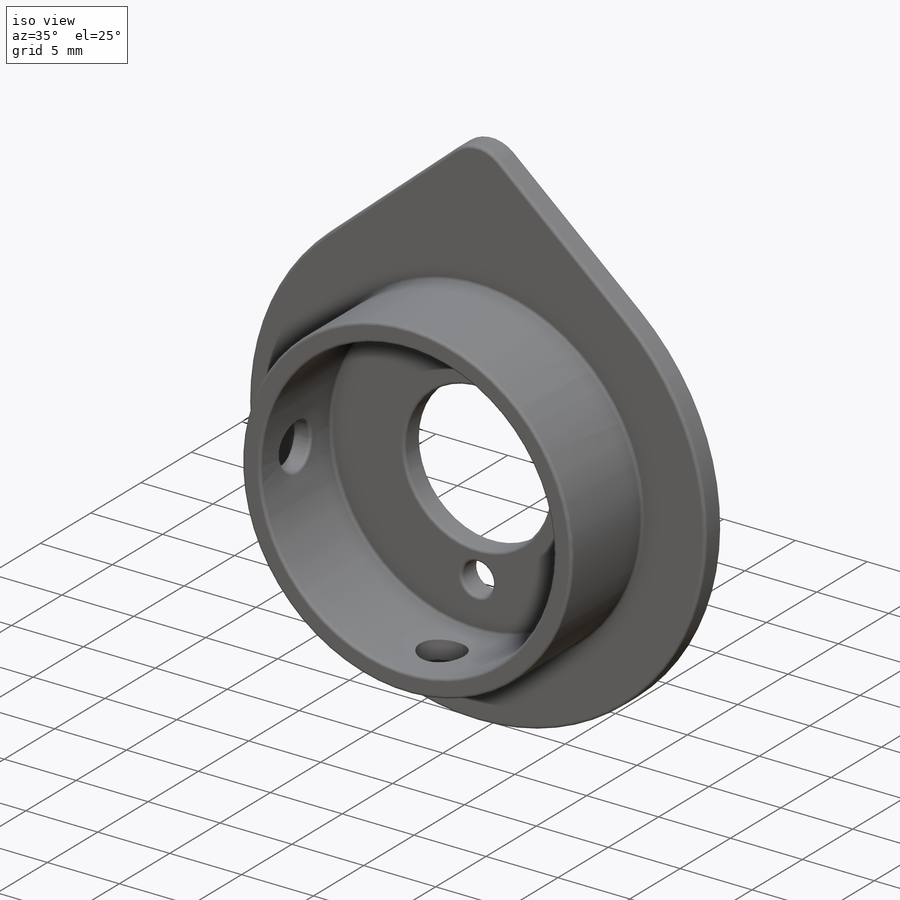
[diagram: iso view]
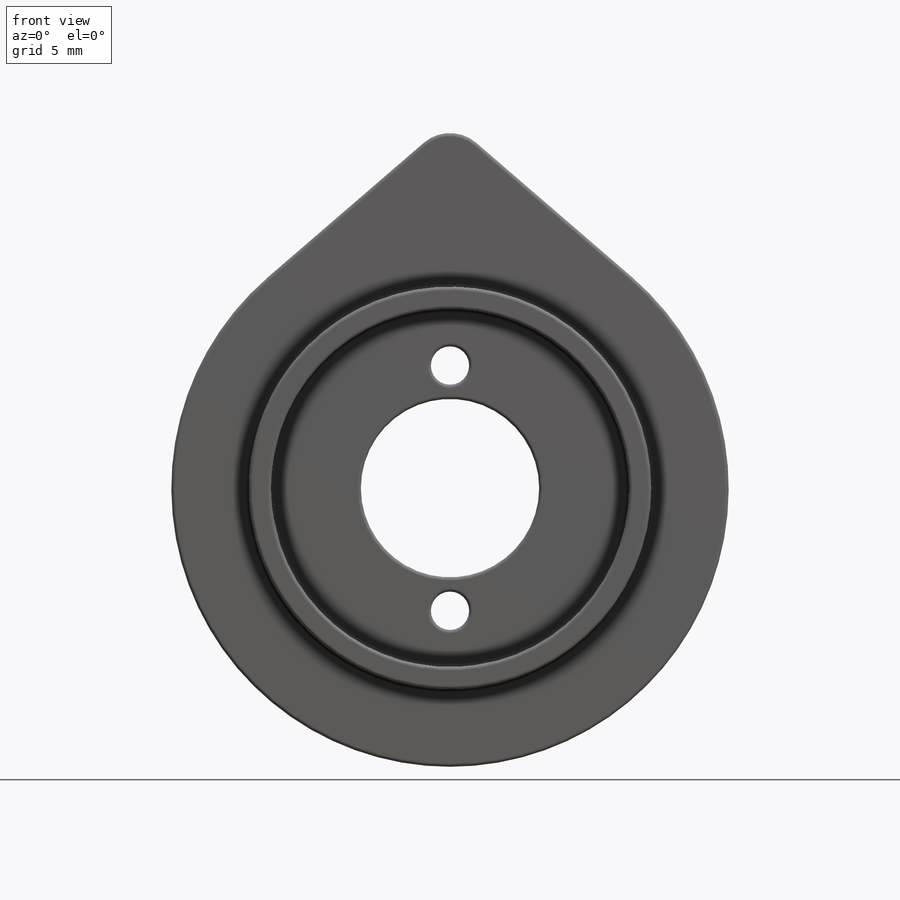
[diagram: front view]
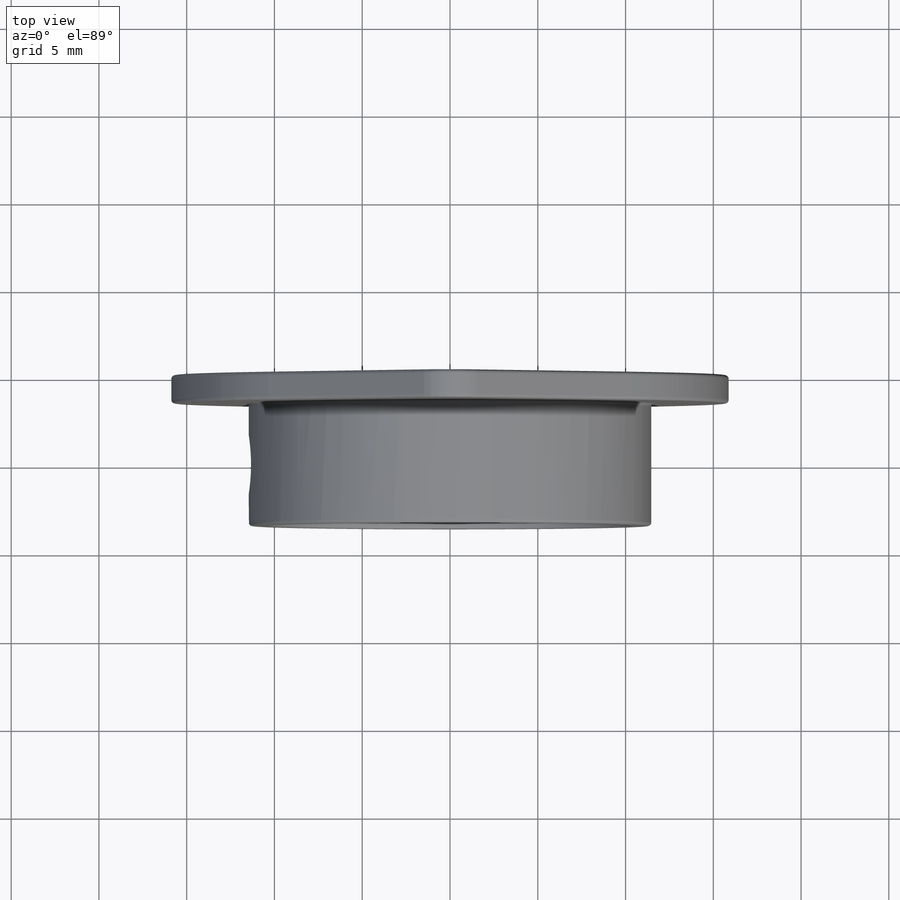
[diagram: top view]
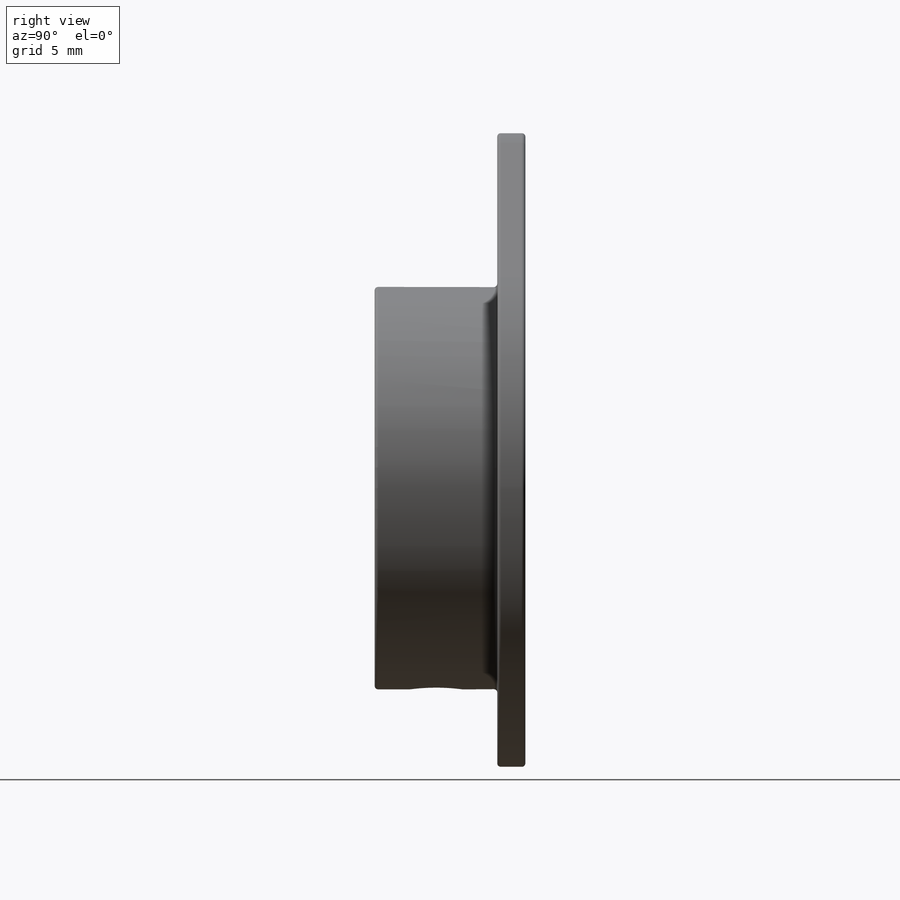
[diagram: right view]
SOLIDWORKS PART (.sldprt)
format: sldprt  version: not decoded by parser v0  size: 411,136 bytes
history: native  units: mm
features: sketch x8, cut_extrude x3, extrude x2, material x1, hole x1, fillet x1 (+16 scaffold rows collapsed)
feature tree (32):
  scaffold x16  (default folders/planes/origin — collapsed)
  material  "6061-T6 (SS)"
  sketch  "Sketch1"  dims[c1.D1=31.75mm c1.D2=~2.282825mm c2.D1=31.75mm c2.D2=~2.282825mm]
  extrude  "Extrude1"  Depth=1.6002mm
  sketch  "Sketch2"  dims[D1=22.9362mm D2=1.27mm]
  extrude  "Extrude2"  Depth=6.985mm
  sketch  "Sketch3"  dims[D1=10.16mm]
  cut_extrude  "Extrude3"  [1 undecoded]
  sketch  "Sketch4"  dims[D1=13.97mm]
  sketch  "Sketch9"  dims[D1=3.048mm D2=3.5052mm]
  sketch  "Sketch8"  dims[D1=3.048mm D2=3.5052mm]
  cut_extrude  "Extrude4"  [1 undecoded]
  hole  "#2-56 Tapped Hole1"  Diameter=1.778mm Depth=5.588mm
  sketch  "3DSketch3"
  sketch  "Sketch7"  dims[hole-wizard template sketch: 34 standard entries collapsed; hole parameters above]
  fillet  "Fillet1"  Radius=0.198437mm
  cut_extrude  "Extrude5"  [1 undecoded]
decode coverage: 11 of 15 modeling features carry decoded parameters
note: ~ marks probable driven/reference dimensions
note: 3 parameter values undecoded
summary: no parameter record found for 3 features
note: suppression state not decoded; provenance and decode notes live in map.json
